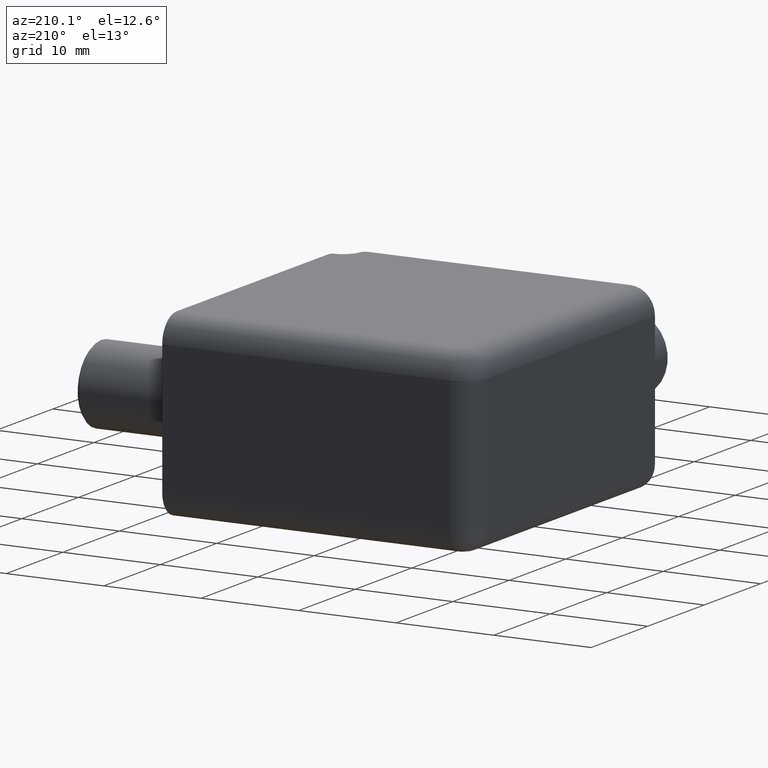
[diagram: clean part render]
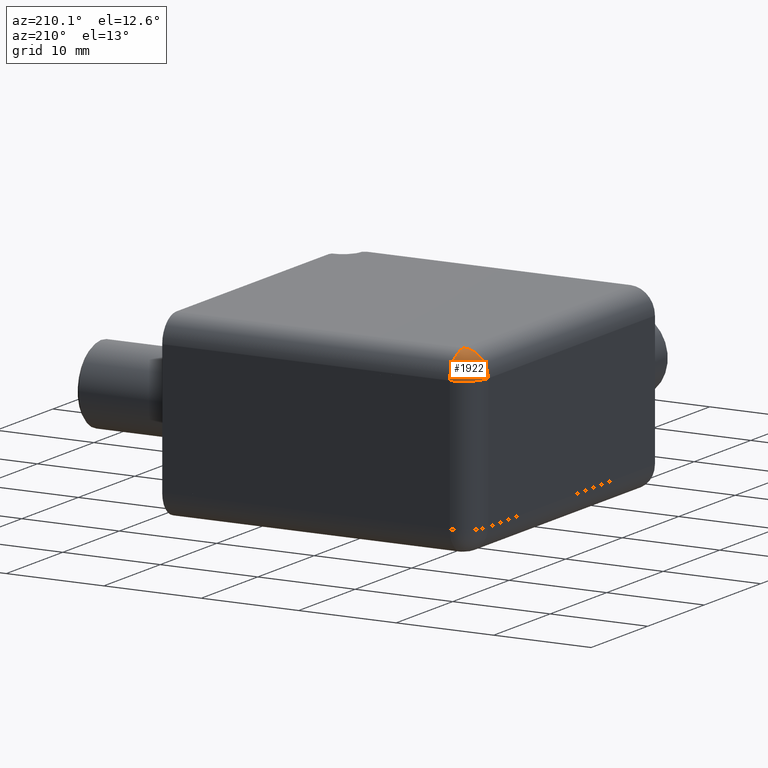
[diagram: same view with one face highlighted and labeled with its STEP entity id]
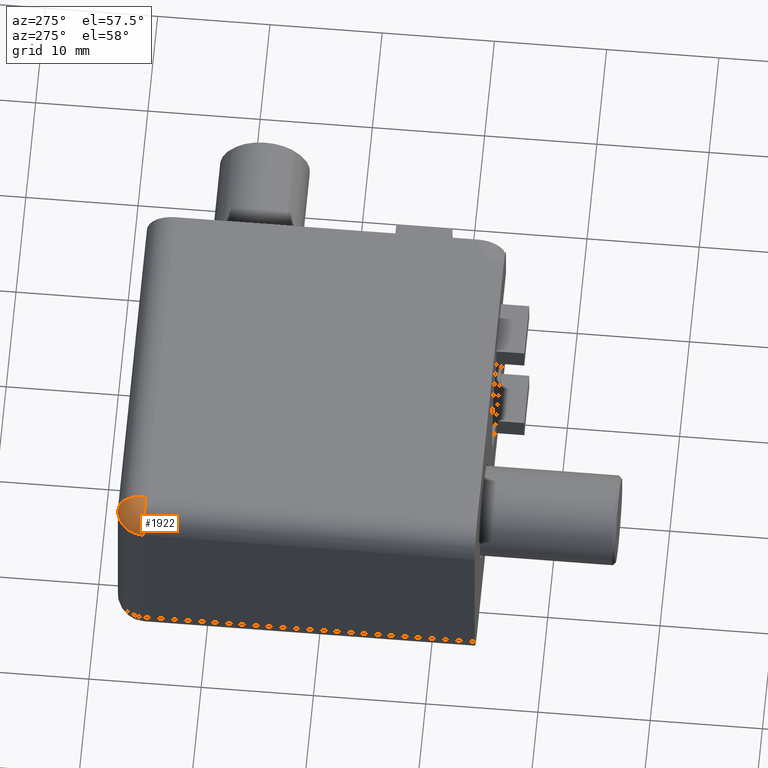
[diagram: same view with one face highlighted and labeled with its STEP entity id]
A machine part, auxiliary view. The second image highlights one B-rep face of the part: STEP entity #1922.
A second angle (auxiliary view) of the same face is appended — the face is thin or edge-on in the first view.
In plain terms, the highlighted spherical surface has radius 2.5 mm.
Its self-contained STEP definition (entity closure, byte-faithful):
#28=SPHERICAL_SURFACE('',#2105,2.5);
#149=FACE_OUTER_BOUND('',#270,.T.);
#270=EDGE_LOOP('',(#1439,#1440,#1441));
#759=CIRCLE('',#2086,2.5);
#770=CIRCLE('',#2102,2.5);
#771=CIRCLE('',#2104,2.5);
#891=VERTEX_POINT('',#3080);
#893=VERTEX_POINT('',#3086);
#911=VERTEX_POINT('',#3138);
#1096=EDGE_CURVE('',#891,#893,#759,.T.);
#1124=EDGE_CURVE('',#911,#893,#770,.T.);
#1125=EDGE_CURVE('',#891,#911,#771,.T.);
#1439=ORIENTED_EDGE('',*,*,#1125,.T.);
#1440=ORIENTED_EDGE('',*,*,#1124,.T.);
#1441=ORIENTED_EDGE('',*,*,#1096,.F.);
#1922=ADVANCED_FACE('',(#149),#28,.T.);
#2086=AXIS2_PLACEMENT_3D('',#3091,#2388,#2389);
#2102=AXIS2_PLACEMENT_3D('',#3142,#2437,#2438);
#2104=AXIS2_PLACEMENT_3D('',#3144,#2441,#2442);
#2105=AXIS2_PLACEMENT_3D('',#3145,#2443,#2444);
#2388=DIRECTION('center_axis',(0.,0.,-1.));
#2389=DIRECTION('ref_axis',(1.,0.,0.));
#2437=DIRECTION('center_axis',(-1.,0.,0.));
#2438=DIRECTION('ref_axis',(0.,0.,1.));
#2441=DIRECTION('center_axis',(0.,1.,0.));
#2442=DIRECTION('ref_axis',(0.,0.,1.));
#2443=DIRECTION('center_axis',(0.,1.,0.));
#2444=DIRECTION('ref_axis',(1.,0.,0.));
#3080=CARTESIAN_POINT('',(-15.2751430278029,15.5522856449551,6.75));
#3086=CARTESIAN_POINT('',(-12.7751430278029,18.052285644955,6.75));
#3091=CARTESIAN_POINT('Origin',(-12.7751430278029,15.5522856449551,6.75));
#3138=CARTESIAN_POINT('',(-12.7751430278029,15.5522856449551,9.25));
#3142=CARTESIAN_POINT('Origin',(-12.7751430278029,15.5522856449551,6.75));
#3144=CARTESIAN_POINT('Origin',(-12.7751430278029,15.5522856449551,6.75));
#3145=CARTESIAN_POINT('Origin',(-12.7751430278029,15.5522856449551,6.75));